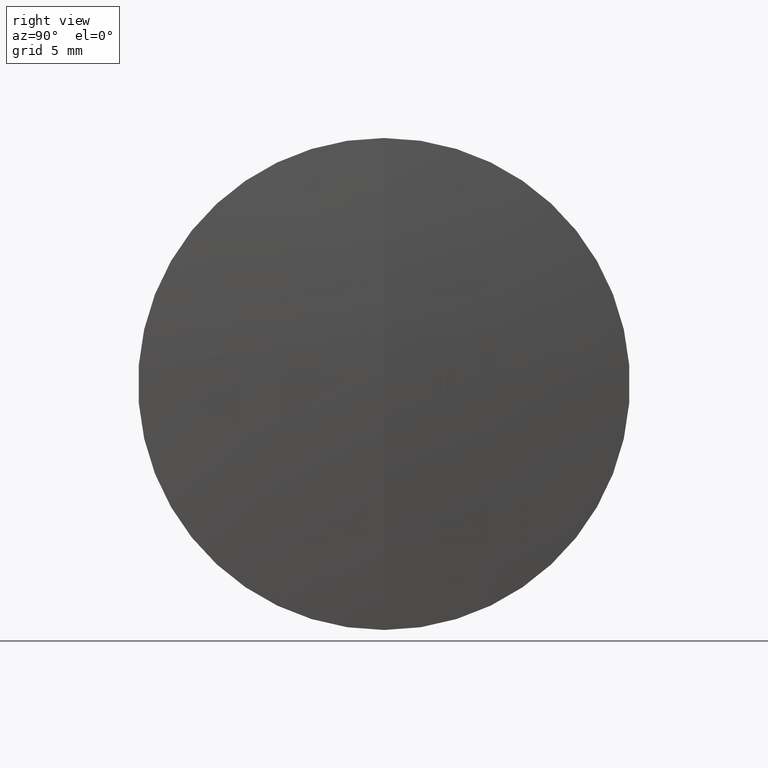
[diagram: clean part render]
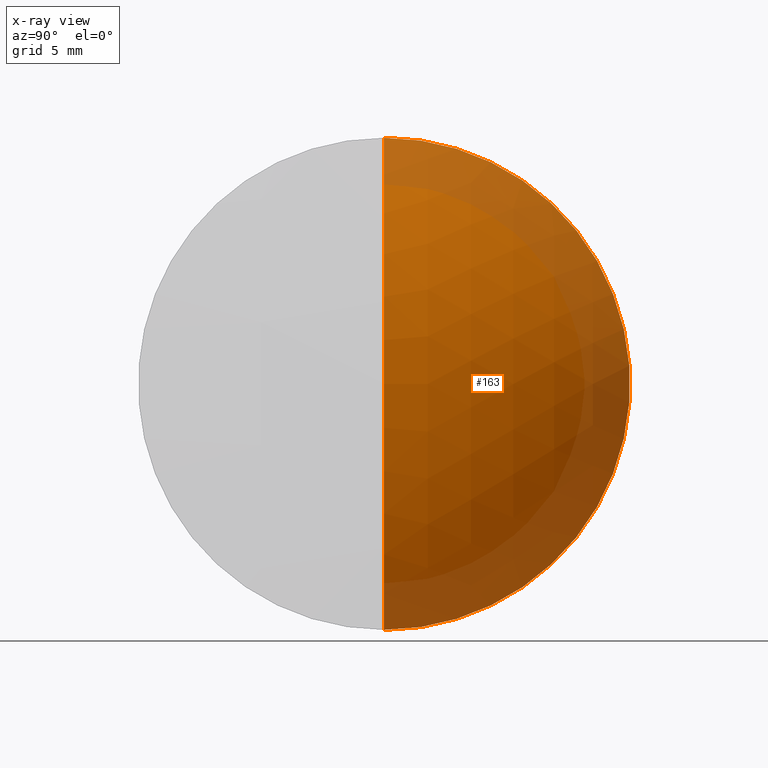
[diagram: x-ray — body ghosted, one internal face saturated and labeled with its STEP entity id]
A machine part, right view, then the same camera in x-ray: the body is ghosted and one INTERNAL B-rep face — a face not visible from any outside direction — is saturated and labeled: STEP entity #163.
In plain terms, the highlighted spherical surface has radius 21.09 mm.
Its self-contained STEP definition (entity closure, byte-faithful):
#10 = DIRECTION ( 'NONE',  ( 0.0000000000000000000, -1.000000000000000000, 0.0000000000000000000 ) ) ;
#18 = CARTESIAN_POINT ( 'NONE',  ( 8.330238585772336900, 0.0000000000000000000, 0.0000000000000000000 ) ) ;
#19 = DIRECTION ( 'NONE',  ( 0.0000000000000000000, 0.0000000000000000000, -1.000000000000000000 ) ) ;
#20 = EDGE_CURVE ( 'NONE', #132, #149, #75, .T. ) ;
#22 = EDGE_LOOP ( 'NONE', ( #259, #81, #327 ) ) ;
#36 = DIRECTION ( 'NONE',  ( 0.0000000000000000000, -1.224646799147353500E-016, 1.000000000000000000 ) ) ;
#41 = DIRECTION ( 'NONE',  ( 0.0000000000000000000, 1.000000000000000000, 0.0000000000000000000 ) ) ;
#49 = CARTESIAN_POINT ( 'NONE',  ( 25.16764040434280100, 0.0000000000000000000, 12.69999999999999900 ) ) ;
#50 = SPHERICAL_SURFACE ( 'NONE', #221, 21.08999999999999600 ) ;
#55 = VERTEX_POINT ( 'NONE', #336 ) ;
#65 = AXIS2_PLACEMENT_3D ( 'NONE', #18, #10, #19 ) ;
#68 = CARTESIAN_POINT ( 'NONE',  ( 8.330238585772336900, 0.0000000000000000000, 0.0000000000000000000 ) ) ;
#75 = CIRCLE ( 'NONE', #65, 21.08999999999999600 ) ;
#81 = ORIENTED_EDGE ( 'NONE', *, *, #347, .T. ) ;
#93 = EDGE_CURVE ( 'NONE', #149, #55, #146, .T. ) ;
#96 = AXIS2_PLACEMENT_3D ( 'NONE', #304, #251, #36 ) ;
#132 = VERTEX_POINT ( 'NONE', #167 ) ;
#146 = CIRCLE ( 'NONE', #264, 12.69999999999999900 ) ;
#149 = VERTEX_POINT ( 'NONE', #49 ) ;
#156 = FACE_OUTER_BOUND ( 'NONE', #22, .T. ) ;
#163 = ADVANCED_FACE ( 'NONE', ( #156 ), #50, .T. ) ;
#167 = CARTESIAN_POINT ( 'NONE',  ( 29.42023858577233500, 0.0000000000000000000, 1.291390049700883900E-015 ) ) ;
#175 = CIRCLE ( 'NONE', #96, 21.08999999999999600 ) ;
#221 = AXIS2_PLACEMENT_3D ( 'NONE', #68, #41, #229 ) ;
#229 = DIRECTION ( 'NONE',  ( 0.0000000000000000000, 0.0000000000000000000, 1.000000000000000000 ) ) ;
#247 = DIRECTION ( 'NONE',  ( 0.0000000000000000000, 0.0000000000000000000, 1.000000000000000000 ) ) ;
#251 = DIRECTION ( 'NONE',  ( -0.0000000000000000000, 1.000000000000000000, 1.224646799147353200E-016 ) ) ;
#259 = ORIENTED_EDGE ( 'NONE', *, *, #20, .F. ) ;
#264 = AXIS2_PLACEMENT_3D ( 'NONE', #289, #344, #247 ) ;
#289 = CARTESIAN_POINT ( 'NONE',  ( 25.16764040434280100, 0.0000000000000000000, 0.0000000000000000000 ) ) ;
#304 = CARTESIAN_POINT ( 'NONE',  ( 8.330238585772336900, 0.0000000000000000000, 0.0000000000000000000 ) ) ;
#327 = ORIENTED_EDGE ( 'NONE', *, *, #93, .F. ) ;
#336 = CARTESIAN_POINT ( 'NONE',  ( 25.16764040434280100, 1.555301434917138400E-015, -12.69999999999999900 ) ) ;
#344 = DIRECTION ( 'NONE',  ( -1.000000000000000000, -0.0000000000000000000, -0.0000000000000000000 ) ) ;
#347 = EDGE_CURVE ( 'NONE', #132, #55, #175, .T. ) ;